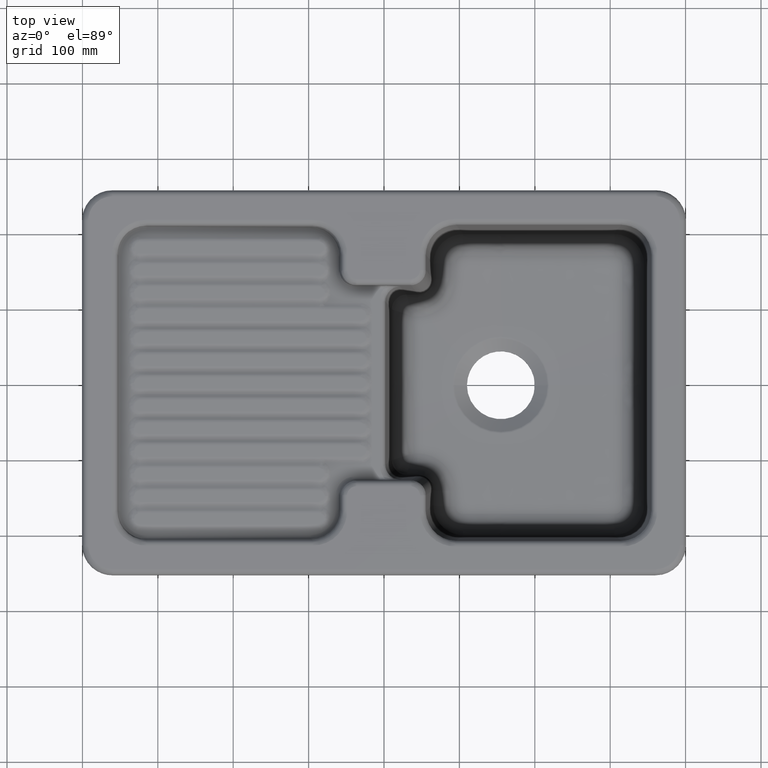
[diagram: clean part render]
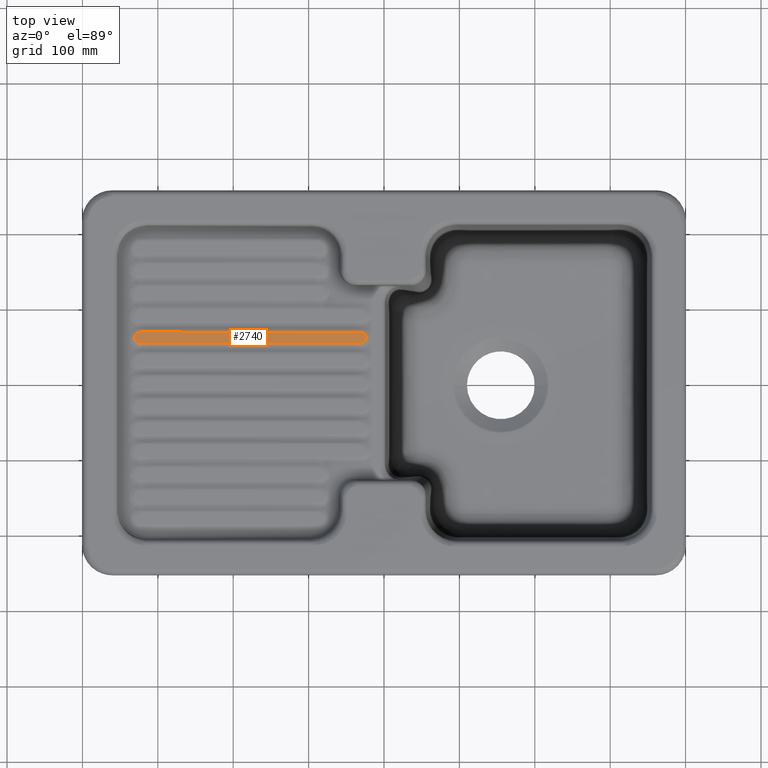
[diagram: same view with one face highlighted and labeled with its STEP entity id]
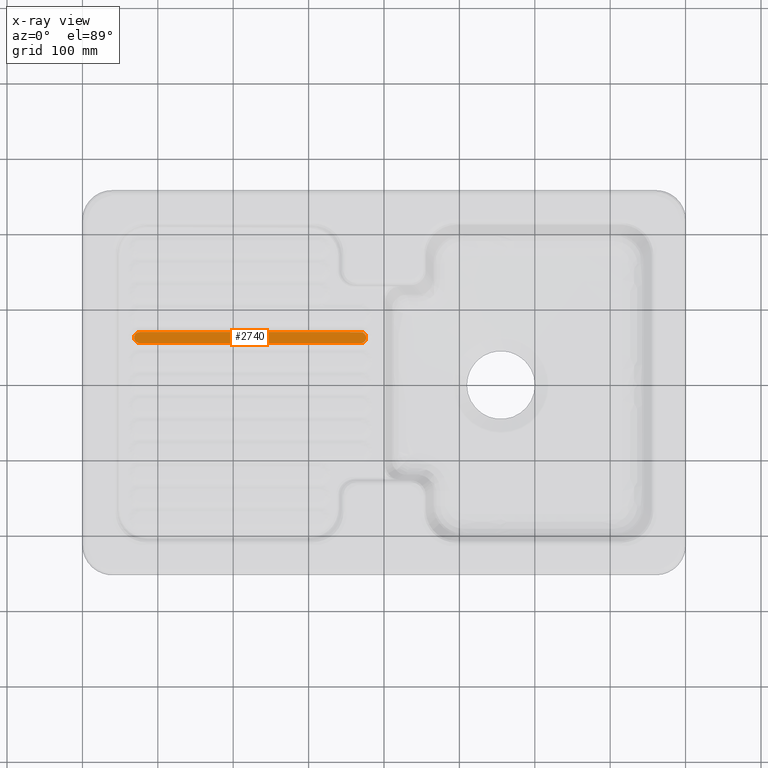
[diagram: x-ray of the same camera — body ghosted, the highlighted face saturated]
A machine part, top view. The second image highlights one B-rep face of the part: STEP entity #2740.
The next image is the same camera in x-ray: the body ghosted, the highlighted face saturated — about 0% of this face is hidden behind the body in this view.
In plain terms, the highlighted planar face has unit normal (0.0207, -0, 0.9998).
Its self-contained STEP definition (entity closure, byte-faithful):
#1931=B_SPLINE_CURVE_WITH_KNOTS('',3,(#25542,#25543,#25544,#25545,#25546,
#25547),.UNSPECIFIED.,.F.,.F.,(4,2,4),(0.,0.5,1.),.UNSPECIFIED.);
#1932=B_SPLINE_CURVE_WITH_KNOTS('',3,(#25575,#25576,#25577,#25578,#25579,
#25580),.UNSPECIFIED.,.F.,.F.,(4,2,4),(0.,0.5,1.),.UNSPECIFIED.);
#1935=B_SPLINE_CURVE_WITH_KNOTS('',3,(#25658,#25659,#25660,#25661,#25662,
#25663),.UNSPECIFIED.,.F.,.F.,(4,2,4),(0.,0.5,1.),.UNSPECIFIED.);
#1936=B_SPLINE_CURVE_WITH_KNOTS('',3,(#25698,#25699,#25700,#25701,#25702,
#25703),.UNSPECIFIED.,.F.,.F.,(4,2,4),(0.,0.5,1.),.UNSPECIFIED.);
#2740=ADVANCED_FACE('',(#3573),#3049,.T.);
#3049=PLANE('',#12112);
#3573=FACE_OUTER_BOUND('',#4338,.T.);
#4338=EDGE_LOOP('',(#6911,#6912,#6913,#6914,#6915,#6916));
#6911=ORIENTED_EDGE('',*,*,#10122,.T.);
#6912=ORIENTED_EDGE('',*,*,#10116,.T.);
#6913=ORIENTED_EDGE('',*,*,#10118,.T.);
#6914=ORIENTED_EDGE('',*,*,#10124,.T.);
#6915=ORIENTED_EDGE('',*,*,#10130,.T.);
#6916=ORIENTED_EDGE('',*,*,#10128,.T.);
#8710=VERTEX_POINT('',#25527);
#8713=VERTEX_POINT('',#25541);
#8715=VERTEX_POINT('',#25574);
#8716=VERTEX_POINT('',#25616);
#8719=VERTEX_POINT('',#25632);
#8720=VERTEX_POINT('',#25646);
#10116=EDGE_CURVE('',#8710,#8713,#1931,.T.);
#10118=EDGE_CURVE('',#8713,#8715,#1932,.T.);
#10122=EDGE_CURVE('',#8716,#8710,#11061,.T.);
#10124=EDGE_CURVE('',#8715,#8719,#11062,.T.);
#10128=EDGE_CURVE('',#8720,#8716,#1935,.T.);
#10130=EDGE_CURVE('',#8719,#8720,#1936,.T.);
#11061=LINE('',#25628,#11316);
#11062=LINE('',#25633,#11317);
#11316=VECTOR('',#13585,1.);
#11317=VECTOR('',#13590,1.);
#12112=AXIS2_PLACEMENT_3D('',#28152,#13903,#13904);
#13585=DIRECTION('',(-0.999786412549167,-1.41553435639709E-13,0.0206671062818701));
#13590=DIRECTION('',(0.999786412549167,3.74700270810979E-13,-0.0206671062818694));
#13903=DIRECTION('',(0.0206671062818691,-1.44502465548868E-15,0.999786412549167));
#13904=DIRECTION('',(-0.997751493975869,-0.0637696160831267,0.0206250414189129));
#25527=CARTESIAN_POINT('',(-323.922696096945,-932.717797887082,-10.1943258687128));
#25541=CARTESIAN_POINT('',(-331.203342822878,-940.000000000001,-10.0438238236792));
#25542=CARTESIAN_POINT('',(-323.922696096945,-932.717797887082,-10.1943258687129));
#25543=CARTESIAN_POINT('',(-325.845576901894,-932.717797887082,-10.1545769968895));
#25544=CARTESIAN_POINT('',(-327.730540079668,-933.509108914346,-10.1156119401098));
#25545=CARTESIAN_POINT('',(-330.414921762284,-936.195984501486,-10.0601216865523));
#25546=CARTESIAN_POINT('',(-331.203342822877,-938.076708404104,-10.0438238236792));
#25547=CARTESIAN_POINT('',(-331.203342822877,-940.000000000001,-10.0438238236792));
#25574=CARTESIAN_POINT('',(-323.922696096945,-947.282202112919,-10.1943258687129));
#25575=CARTESIAN_POINT('',(-331.203342822878,-940.000000000001,-10.0438238236792));
#25576=CARTESIAN_POINT('',(-331.203342822878,-941.923291595899,-10.0438238236792));
#25577=CARTESIAN_POINT('',(-330.412200809718,-943.808657464163,-10.0601779327816));
#25578=CARTESIAN_POINT('',(-327.725899105486,-946.493612619506,-10.1157078761071));
#25579=CARTESIAN_POINT('',(-325.845576901893,-947.282202112919,-10.1545769968896));
#25580=CARTESIAN_POINT('',(-323.922696096945,-947.282202112919,-10.194325868713));
#25616=CARTESIAN_POINT('',(-30.9946354779277,-932.717797887082,-16.2495945598719));
#25628=CARTESIAN_POINT('',(-177.458665787437,-932.717797887082,-13.2219602142923));
#25632=CARTESIAN_POINT('',(-30.9946354779303,-947.282202112919,-16.2495945598718));
#25633=CARTESIAN_POINT('',(-177.458665787437,-947.282202112919,-13.2219602142923));
#25646=CARTESIAN_POINT('',(-23.7139887519949,-940.,-16.4000966049055));
#25658=CARTESIAN_POINT('',(-23.7139887519946,-940.,-16.4000966049056));
#25659=CARTESIAN_POINT('',(-23.713988751995,-938.076708404103,-16.4000966049055));
#25660=CARTESIAN_POINT('',(-24.5051307651542,-936.191342535839,-16.383742495803));
#25661=CARTESIAN_POINT('',(-27.1914324693852,-933.506387380495,-16.3282125524775));
#25662=CARTESIAN_POINT('',(-29.0717546729789,-932.717797887081,-16.289343431695));
#25663=CARTESIAN_POINT('',(-30.9946354779273,-932.717797887081,-16.2495945598716));
#25698=CARTESIAN_POINT('',(-30.9946354779303,-947.282202112919,-16.2495945598718));
#25699=CARTESIAN_POINT('',(-29.0717546729815,-947.28220211292,-16.2893434316952));
#25700=CARTESIAN_POINT('',(-27.1867914952062,-946.490891085655,-16.3283084884748));
#25701=CARTESIAN_POINT('',(-24.5024098125895,-943.804015498516,-16.3837987420324));
#25702=CARTESIAN_POINT('',(-23.7139887519951,-941.923291595898,-16.4000966049056));
#25703=CARTESIAN_POINT('',(-23.7139887519951,-940.,-16.4000966049056));
#28152=CARTESIAN_POINT('',(-6.75035896271478,-907.089464406579,-16.7507606421246));